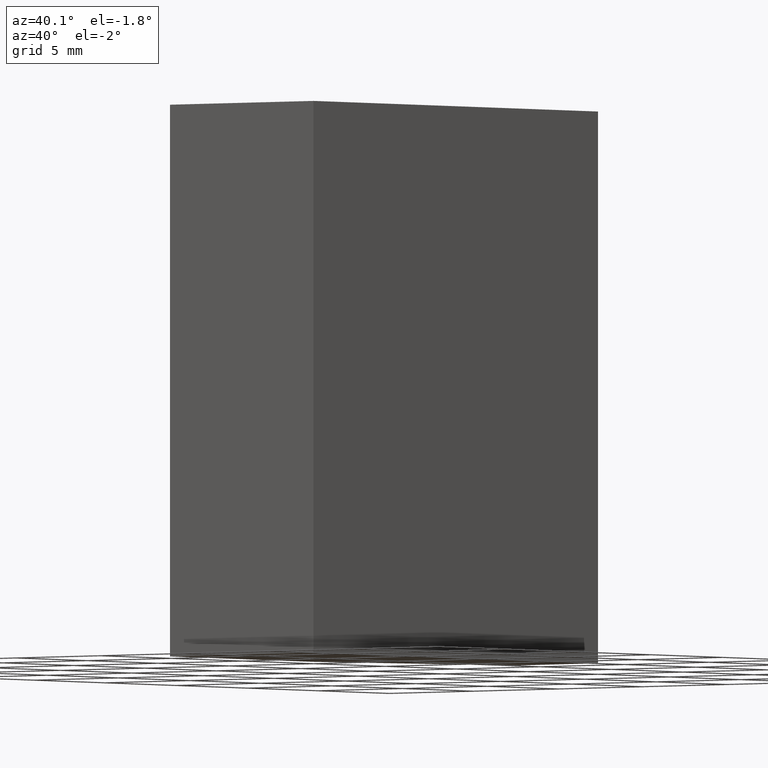
[diagram: clean part render]
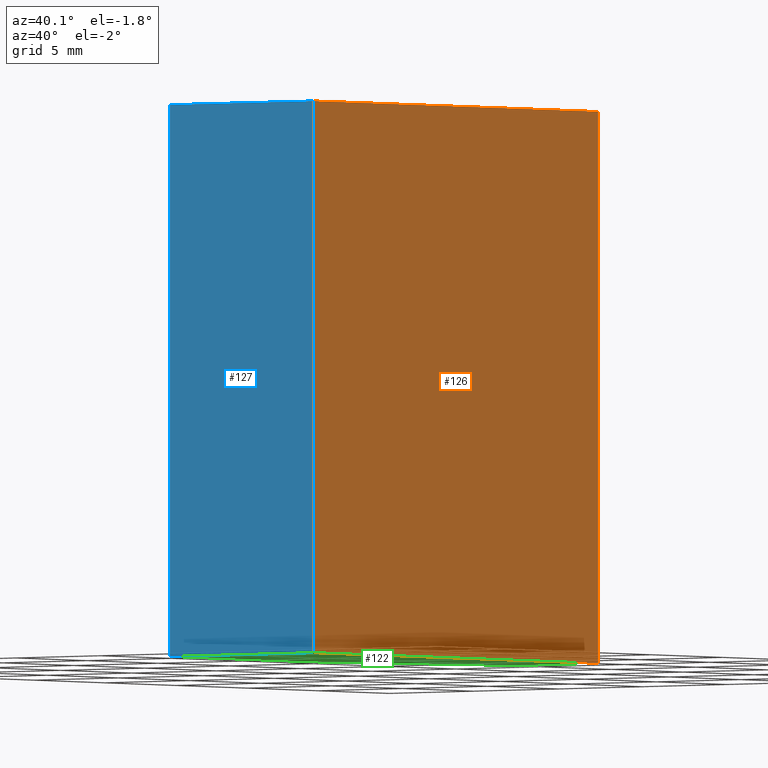
[diagram: same view with three faces highlighted in distinct colors, each labeled with its STEP entity id]
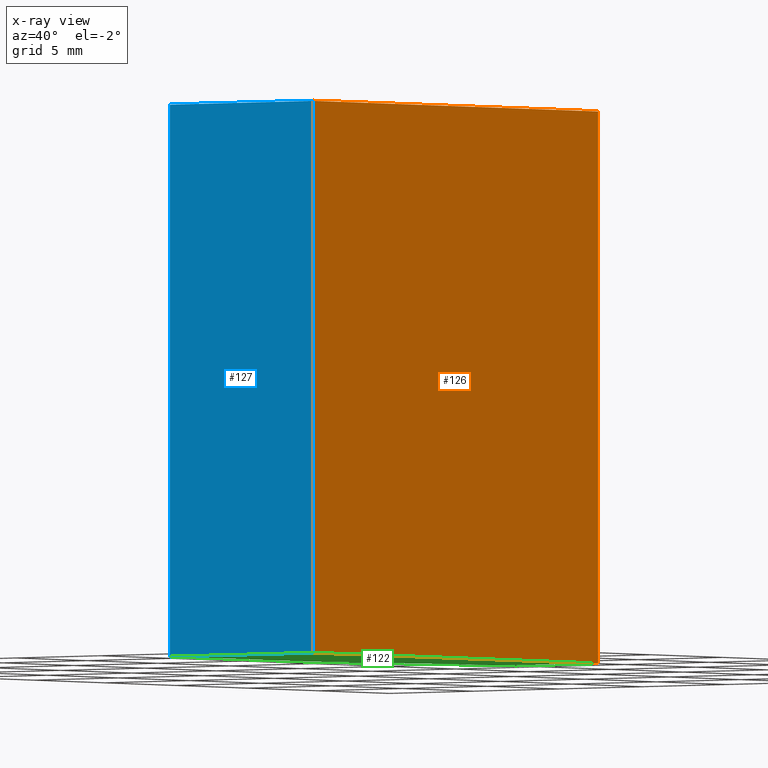
[diagram: x-ray of the same camera — body ghosted, the three highlighted faces saturated]
A machine part, auxiliary view with three faces highlighted in distinct colors.
The next image is the same camera in x-ray (body ghosted, the three faces saturated) — at least one of them is partly hidden behind the body in this view.
Their STEP definitions:

[orange] entity #126 — the highlighted planar face has unit normal (1, 0, 0).
#20=FACE_OUTER_BOUND('',#27,.T.);
#27=EDGE_LOOP('',(#102,#103,#104,#105));
#30=LINE('',#194,#45);
#41=LINE('',#215,#56);
#42=LINE('',#218,#57);
#43=LINE('',#219,#58);
#45=VECTOR('',#163,10.);
#56=VECTOR('',#180,10.);
#57=VECTOR('',#183,10.);
#58=VECTOR('',#184,10.);
#60=VERTEX_POINT('',#192);
#61=VERTEX_POINT('',#193);
#68=VERTEX_POINT('',#213);
#69=VERTEX_POINT('',#217);
#70=EDGE_CURVE('',#60,#61,#30,.T.);
#81=EDGE_CURVE('',#68,#61,#41,.T.);
#82=EDGE_CURVE('',#68,#69,#42,.T.);
#83=EDGE_CURVE('',#60,#69,#43,.T.);
#102=ORIENTED_EDGE('',*,*,#82,.T.);
#103=ORIENTED_EDGE('',*,*,#83,.F.);
#104=ORIENTED_EDGE('',*,*,#70,.T.);
#105=ORIENTED_EDGE('',*,*,#81,.F.);
#119=PLANE('',#156);
#126=ADVANCED_FACE('',(#20),#119,.T.);
#156=AXIS2_PLACEMENT_3D('',#216,#181,#182);
#163=DIRECTION('',(-3.05311331771918E-16,1.,0.));
#180=DIRECTION('',(0.,0.,-1.));
#181=DIRECTION('center_axis',(1.,3.05311331771918E-16,0.));
#182=DIRECTION('ref_axis',(0.,0.,-1.));
#183=DIRECTION('',(3.05311331771918E-16,-1.,0.));
#184=DIRECTION('',(0.,0.,1.));
#192=CARTESIAN_POINT('',(3.88578058618805E-15,2.22044604925031E-15,-12.5));
#193=CARTESIAN_POINT('',(-2.22044604925031E-15,20.,-12.5));
#194=CARTESIAN_POINT('',(-2.22044604925031E-15,20.,-12.5));
#213=CARTESIAN_POINT('',(-2.22044604925031E-15,20.,12.5));
#215=CARTESIAN_POINT('',(-2.22044604925031E-15,20.,0.));
#216=CARTESIAN_POINT('Origin',(-2.22044604925031E-15,20.,0.));
#217=CARTESIAN_POINT('',(3.88578058618805E-15,2.22044604925031E-15,12.5));
#218=CARTESIAN_POINT('',(-2.22044604925031E-15,20.,12.5));
#219=CARTESIAN_POINT('',(3.88578058618805E-15,2.22044604925031E-15,0.));

[blue] entity #127 — the highlighted planar face has unit normal (0, -1, 0).
#21=FACE_OUTER_BOUND('',#28,.T.);
#28=EDGE_LOOP('',(#106,#107,#108,#109));
#31=LINE('',#196,#46);
#37=LINE('',#207,#52);
#43=LINE('',#219,#58);
#44=LINE('',#221,#59);
#46=VECTOR('',#164,10.);
#52=VECTOR('',#172,10.);
#58=VECTOR('',#184,10.);
#59=VECTOR('',#187,10.);
#60=VERTEX_POINT('',#192);
#62=VERTEX_POINT('',#195);
#65=VERTEX_POINT('',#203);
#69=VERTEX_POINT('',#217);
#71=EDGE_CURVE('',#62,#60,#31,.T.);
#77=EDGE_CURVE('',#65,#62,#37,.T.);
#83=EDGE_CURVE('',#60,#69,#43,.T.);
#84=EDGE_CURVE('',#69,#65,#44,.T.);
#106=ORIENTED_EDGE('',*,*,#84,.T.);
#107=ORIENTED_EDGE('',*,*,#77,.T.);
#108=ORIENTED_EDGE('',*,*,#71,.T.);
#109=ORIENTED_EDGE('',*,*,#83,.T.);
#120=PLANE('',#157);
#127=ADVANCED_FACE('',(#21),#120,.T.);
#157=AXIS2_PLACEMENT_3D('',#220,#185,#186);
#164=DIRECTION('',(1.,2.61228946970625E-16,0.));
#172=DIRECTION('',(0.,0.,-1.));
#184=DIRECTION('',(0.,0.,1.));
#185=DIRECTION('center_axis',(2.61228946970625E-16,-1.,0.));
#186=DIRECTION('ref_axis',(0.,0.,-1.));
#187=DIRECTION('',(-1.,-2.61228946970625E-16,0.));
#192=CARTESIAN_POINT('',(3.88578058618805E-15,2.22044604925031E-15,-12.5));
#195=CARTESIAN_POINT('',(-8.5,0.,-12.5));
#196=CARTESIAN_POINT('',(3.88578058618805E-15,2.22044604925031E-15,-12.5));
#203=CARTESIAN_POINT('',(-8.5,0.,12.5));
#207=CARTESIAN_POINT('',(-8.5,0.,0.));
#217=CARTESIAN_POINT('',(3.88578058618805E-15,2.22044604925031E-15,12.5));
#219=CARTESIAN_POINT('',(3.88578058618805E-15,2.22044604925031E-15,0.));
#220=CARTESIAN_POINT('Origin',(3.88578058618805E-15,2.22044604925031E-15,
0.));
#221=CARTESIAN_POINT('',(3.88578058618805E-15,2.22044604925031E-15,12.5));

[green] entity #122 — the highlighted planar face has unit normal (0, 0, 1).
#16=FACE_OUTER_BOUND('',#23,.T.);
#23=EDGE_LOOP('',(#85,#86,#87,#88,#89));
#30=LINE('',#194,#45);
#31=LINE('',#196,#46);
#32=LINE('',#198,#47);
#33=LINE('',#200,#48);
#34=LINE('',#201,#49);
#45=VECTOR('',#163,10.);
#46=VECTOR('',#164,10.);
#47=VECTOR('',#165,10.);
#48=VECTOR('',#166,10.);
#49=VECTOR('',#167,10.);
#60=VERTEX_POINT('',#192);
#61=VERTEX_POINT('',#193);
#62=VERTEX_POINT('',#195);
#63=VERTEX_POINT('',#197);
#64=VERTEX_POINT('',#199);
#70=EDGE_CURVE('',#60,#61,#30,.T.);
#71=EDGE_CURVE('',#62,#60,#31,.T.);
#72=EDGE_CURVE('',#63,#62,#32,.T.);
#73=EDGE_CURVE('',#64,#63,#33,.T.);
#74=EDGE_CURVE('',#61,#64,#34,.T.);
#85=ORIENTED_EDGE('',*,*,#70,.F.);
#86=ORIENTED_EDGE('',*,*,#71,.F.);
#87=ORIENTED_EDGE('',*,*,#72,.F.);
#88=ORIENTED_EDGE('',*,*,#73,.F.);
#89=ORIENTED_EDGE('',*,*,#74,.F.);
#115=PLANE('',#152);
#122=ADVANCED_FACE('',(#16),#115,.F.);
#152=AXIS2_PLACEMENT_3D('',#191,#161,#162);
#161=DIRECTION('center_axis',(0.,0.,1.));
#162=DIRECTION('ref_axis',(1.,0.,0.));
#163=DIRECTION('',(-3.05311331771918E-16,1.,0.));
#164=DIRECTION('',(1.,2.61228946970625E-16,0.));
#165=DIRECTION('',(2.22044604925031E-16,-1.,0.));
#166=DIRECTION('',(-0.342020143325669,-0.939692620785909,0.));
#167=DIRECTION('',(-1.,0.,0.));
#191=CARTESIAN_POINT('Origin',(-3.77809379025471,9.38542853088518,-12.5));
#192=CARTESIAN_POINT('',(3.88578058618805E-15,2.22044604925031E-15,-12.5));
#193=CARTESIAN_POINT('',(-2.22044604925031E-15,20.,-12.5));
#194=CARTESIAN_POINT('',(-2.22044604925031E-15,20.,-12.5));
#195=CARTESIAN_POINT('',(-8.5,0.,-12.5));
#196=CARTESIAN_POINT('',(3.88578058618805E-15,2.22044604925031E-15,-12.5));
#197=CARTESIAN_POINT('',(-8.5,10.,-12.5));
#198=CARTESIAN_POINT('',(-8.5,0.,-12.5));
#199=CARTESIAN_POINT('',(-4.86029765733798,20.,-12.5));
#200=CARTESIAN_POINT('',(-8.5,10.,-12.5));
#201=CARTESIAN_POINT('',(-4.86029765733798,20.,-12.5));